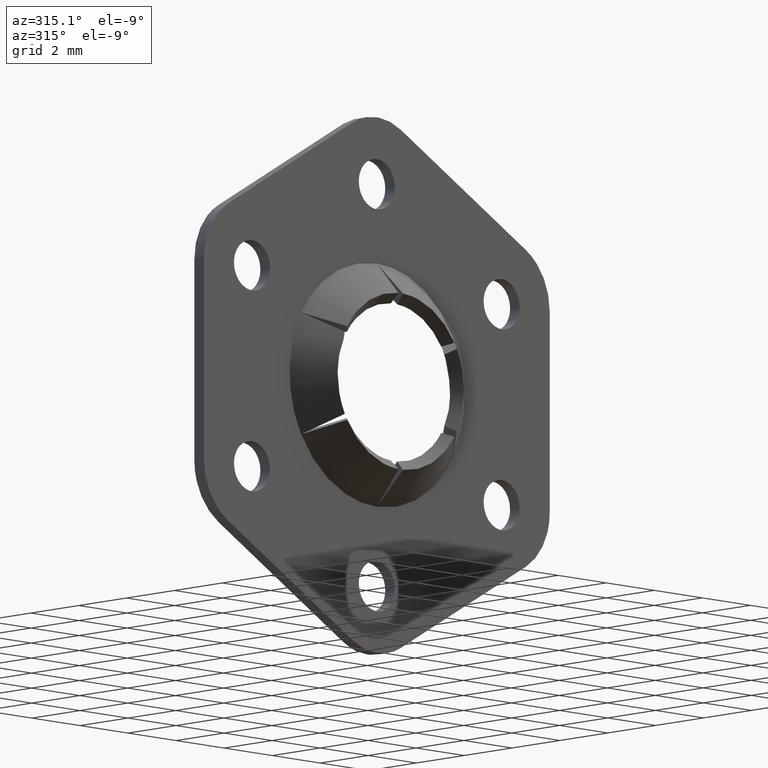
[diagram: clean part render]
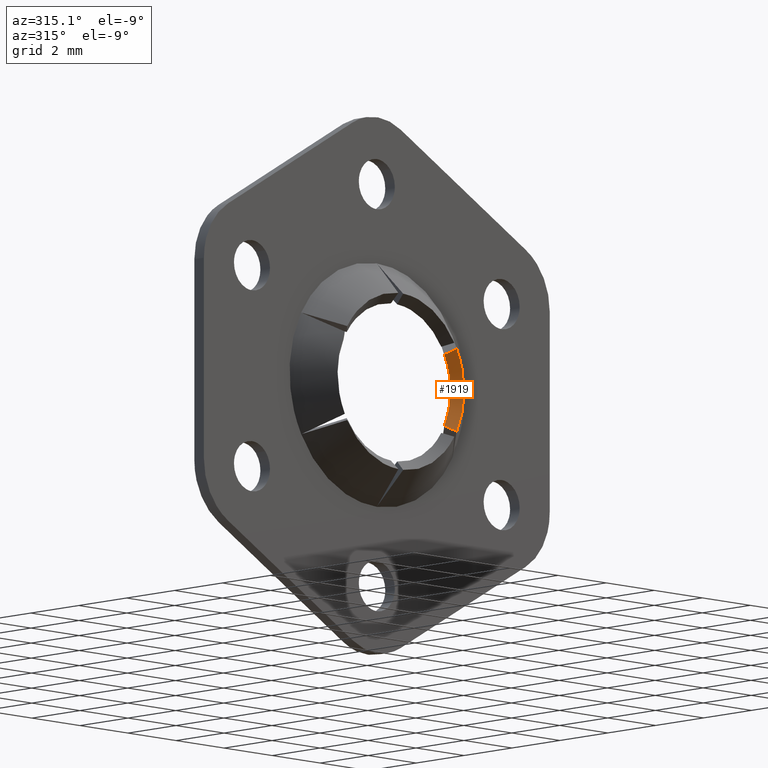
[diagram: same view with one face highlighted and labeled with its STEP entity id]
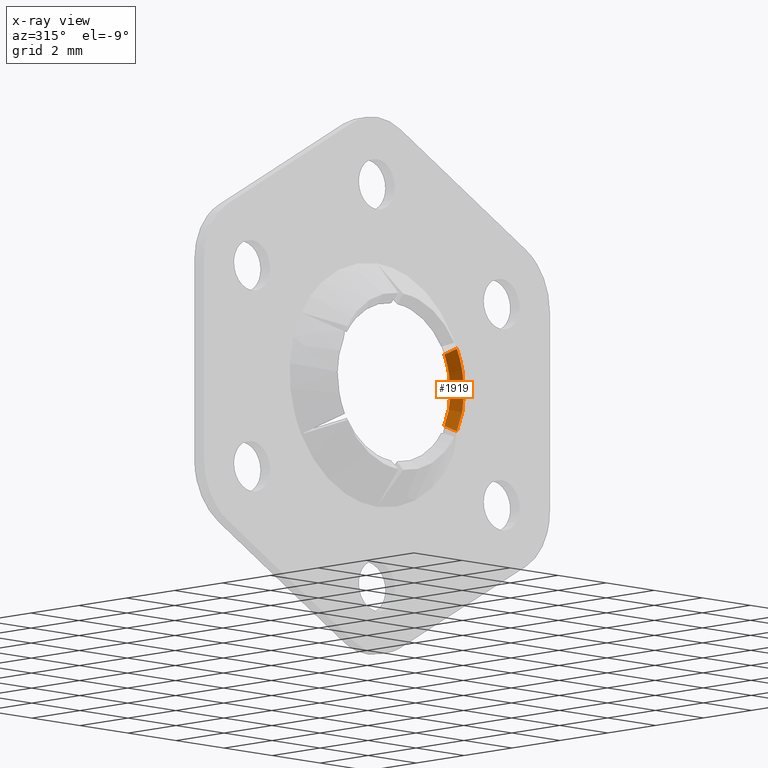
[diagram: x-ray of the same camera — body ghosted, the highlighted face saturated]
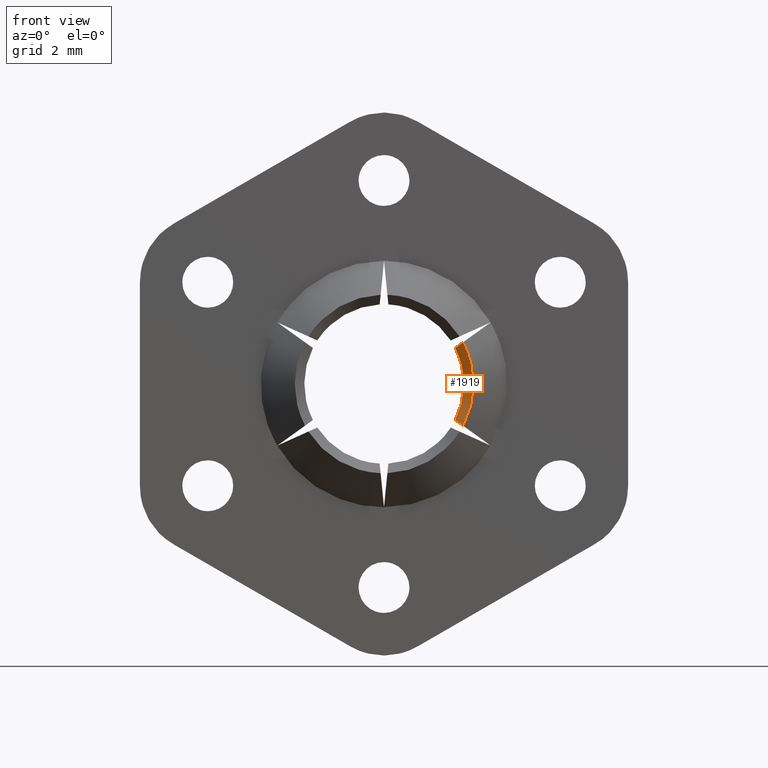
[diagram: same view with one face highlighted and labeled with its STEP entity id]
A machine part, auxiliary view. The second image highlights one B-rep face of the part: STEP entity #1919.
The next image is the same camera in x-ray: the body ghosted, the highlighted face saturated — about 0% of this face is hidden behind the body in this view.
A second angle (front view) of the same face is appended — the face is thin or edge-on in the first view.
In plain terms, the highlighted face is a freeform B-spline surface patch.
Its self-contained STEP definition (entity closure, byte-faithful):
#1572=CARTESIAN_POINT('',(2.328463421133965,-1.399999999999550,-1.228868929150912));
#1573=VERTEX_POINT('',#1572);
#1581=CARTESIAN_POINT('',(2.096315687455475,-1.117157287532256,-1.062054866062908));
#1582=VERTEX_POINT('',#1581);
#1583=CARTESIAN_POINT('',(2.328463421133965,-1.399999999999550,-1.228868929150912));
#1584=CARTESIAN_POINT('',(2.096315687455475,-1.117157287532256,-1.062054866062908));
#1585=QUASI_UNIFORM_CURVE('',1,(#1583,#1584),.UNSPECIFIED.,.F.,.U.);
#1586=EDGE_CURVE('',#1573,#1582,#1585,.T.);
#1615=CARTESIAN_POINT('',(2.096315687455545,-1.117157287532276,1.062054866062942));
#1616=VERTEX_POINT('',#1615);
#1624=CARTESIAN_POINT('',(2.328463421133990,-1.399999999999550,1.228868929150860));
#1625=VERTEX_POINT('',#1624);
#1626=CARTESIAN_POINT('',(2.096315687455545,-1.117157287532276,1.062054866062942));
#1627=CARTESIAN_POINT('',(2.328463421133990,-1.399999999999550,1.228868929150860));
#1628=QUASI_UNIFORM_CURVE('',1,(#1626,#1627),.UNSPECIFIED.,.F.,.U.);
#1629=EDGE_CURVE('',#1616,#1625,#1628,.T.);
#1687=CARTESIAN_POINT('',(2.328463421133965,-1.399999999999550,-1.228868929150912));
#1688=CARTESIAN_POINT('',(2.403073590709426,-1.399999999999552,-1.087536485321984));
#1689=CARTESIAN_POINT('',(2.508426498841141,-1.399999999999547,-0.834436672791659));
#1690=CARTESIAN_POINT('',(2.604795858429452,-1.399999999999553,-0.438962558636696));
#1691=CARTESIAN_POINT('',(2.642285513558523,-1.399999999999557,-0.060155150883524));
#1692=CARTESIAN_POINT('',(2.622779304095046,-1.399999999999548,0.306626433140223));
#1693=CARTESIAN_POINT('',(2.540191424939699,-1.399999999999553,0.745806781407451));
#1694=CARTESIAN_POINT('',(2.427977978819690,-1.399999999999548,1.040437460731355));
#1695=CARTESIAN_POINT('',(2.328463421133990,-1.399999999999550,1.228868929150860));
#1696=B_SPLINE_CURVE_WITH_KNOTS('',3,(#1687,#1688,#1689,#1690,#1691,#1692,#1693,#1694,#1695),.UNSPECIFIED.,.F.,.U.,(4,1,1,1,1,1,4),(4.706114E-009,0.479448460397901,0.819061050399104,1.218603202740863,1.618142287118844,1.917798345099982,2.557064456627875),.UNSPECIFIED.);
#1697=EDGE_CURVE('',#1573,#1625,#1696,.T.);
#1889=CARTESIAN_POINT('',(2.036520343331271,-1.110086219714992,1.158404451155508));
#1890=CARTESIAN_POINT('',(2.294819127315929,-1.407247844506664,1.305328817551200));
#1891=CARTESIAN_POINT('',(2.706962285417963,-1.110086219714992,-0.020258711542218));
#1892=CARTESIAN_POINT('',(3.050295495373557,-1.407247844506664,-0.022828192654246));
#1893=CARTESIAN_POINT('',(2.018954367896077,-1.110086219714992,-1.188755332948022));
#1894=CARTESIAN_POINT('',(2.275025199624195,-1.407247844506664,-1.339529204646001));
#1902=(BOUNDED_SURFACE()B_SPLINE_SURFACE(1,2,((#1889,#1891,#1893),(#1890,#1892,#1894)),.UNSPECIFIED.,.F.,.F.,.U.)B_SPLINE_SURFACE_WITH_KNOTS((2,2),(3,3),(0.0,0.420249999997092),(0.0,2.835631895090713),.UNSPECIFIED.)GEOMETRIC_REPRESENTATION_ITEM()RATIONAL_B_SPLINE_SURFACE(((1.0,0.863715254032508,0.995890713158660),(1.0,0.863715254032508,0.995890713158660)))REPRESENTATION_ITEM('')SURFACE());
#1903=ORIENTED_EDGE('',*,*,#1586,.F.);
#1904=ORIENTED_EDGE('',*,*,#1697,.T.);
#1905=ORIENTED_EDGE('',*,*,#1629,.F.);
#1906=CARTESIAN_POINT('',(2.096315687455475,-1.117157287532256,-1.062054866062908));
#1907=CARTESIAN_POINT('',(2.184557017519369,-1.117157287530365,-0.887994529501976));
#1908=CARTESIAN_POINT('',(2.299693934829258,-1.117157287527872,-0.566734572401689));
#1909=CARTESIAN_POINT('',(2.352005988287493,-1.117157287526781,-0.160871762577831));
#1910=CARTESIAN_POINT('',(2.349437137306147,-1.117157287526803,0.189574431828892));
#1911=CARTESIAN_POINT('',(2.294283392795419,-1.117157287528037,0.583293373022524));
#1912=CARTESIAN_POINT('',(2.181958138773630,-1.117157287530419,0.893112416299043));
#1913=CARTESIAN_POINT('',(2.096315687455545,-1.117157287532276,1.062054866062942));
#1914=B_SPLINE_CURVE_WITH_KNOTS('',3,(#1906,#1907,#1908,#1909,#1910,#1911,#1912,#1913),.UNSPECIFIED.,.F.,.U.,(4,1,1,1,1,4),(4.668306E-009,0.585440045421663,1.015912947777344,1.222532489264731,1.635787509167269,2.204008557682917),.UNSPECIFIED.);
#1915=EDGE_CURVE('',#1582,#1616,#1914,.T.);
#1916=ORIENTED_EDGE('',*,*,#1915,.F.);
#1917=EDGE_LOOP('',(#1903,#1904,#1905,#1916));
#1918=FACE_OUTER_BOUND('',#1917,.T.);
#1919=ADVANCED_FACE('',(#1918),#1902,.F.);